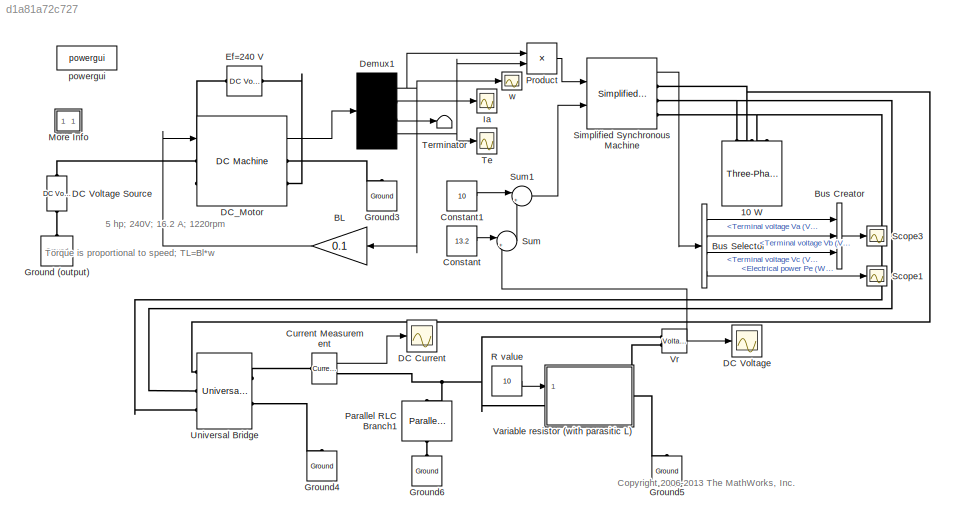
MODEL slx_d1a81a72c727
KIND model
CONFIG AbsTol = auto
CONFIG FixedStep = auto
CONFIG MaxStep = 0.001
CONFIG MinStep = auto
CONFIG RelTol = 1e-4
CONFIG SampleTimeConstraint = Unconstrained
CONFIG Solver = ode23tb
CONFIG SolverMode = Auto
CONFIG SolverName = ode23tb
CONFIG StartTime = 0.0
CONFIG StopTime = 3
BLOCK [Reference] 10 W  REF=powerlib/Elements/Three-Phase
Parallel RLC Load
  AttributesFormatString = \n
  Ports = [0, 0, 0, 0, 0, 3]
  SourceBlock = powerlib/Elements/Three-Phase\nParallel RLC Load
  SourceType = Three-Phase Parallel RLC Load
BLOCK [Gain] BL
  Gain = 0.1
BLOCK [BusCreator] Bus Creator
  DisplayOption = bar
  InheritFromInputs = on
  Inputs = 3
  Ports = [3, 1]
BLOCK [BusSelector] Bus Selector
  OutputSignals = Terminal voltage Va (V),Terminal voltage Vb (V),Terminal voltage Vc (V),Electrical power Pe (W)
  Ports = [1, 4]
BLOCK [Constant] Constant
  Value = 13.2
BLOCK [Constant] Constant1
  Value = 10
BLOCK [Reference] Current Measurement  REF=powerlib/Measurements/Current Measurement
  Ports = [0, 1, 0, 0, 0, 1, 1]
  SourceBlock = powerlib/Measurements/Current Measurement
  SourceType = Current Measurement
BLOCK [Scope] DC Current
  Ports = [1]
  ScopeSpecificationString = Simulink.scopes.TimeScopeBlockCfg('CurrentConfiguration', extmgr.ConfigurationSet(extmgr.Configuration('Core','General UI',true),extmgr.Configuration('Core','Source UI',true),extmgr.Configuration('Sources','WiredSimulink',true,'PointsPerSignal',130000,'DataLoggingDecimation','1','DataLoggingSaveFormat','StructureWithTime'),extmgr.Configuration('Visuals','Time Domain',true,'SerializedDisplays',{str...<+1989ch>
BLOCK [Scope] DC Voltage
  Ports = [1]
  ScopeSpecificationString = Simulink.scopes.TimeScopeBlockCfg('CurrentConfiguration', extmgr.ConfigurationSet(extmgr.Configuration('Core','General UI',true),extmgr.Configuration('Core','Source UI',true),extmgr.Configuration('Sources','WiredSimulink',true,'DataLoggingDecimation','1','PointsPerSignal',130000,'DataLoggingSaveFormat','StructureWithTime'),extmgr.Configuration('Visuals','Time Domain',true,'SerializedDisplays',{str...<+1993ch>
BLOCK [Reference] DC Voltage Source  REF=powerlib/Electrical
Sources/DC Voltage Source
  Ports = [0, 0, 0, 0, 0, 1, 1]
  SourceBlock = powerlib/Electrical\nSources/DC Voltage Source
  SourceType = DC Voltage Source
BLOCK [Reference] DC_Motor  REF=powerlib/Machines/DC Machine
  Ports = [1, 1, 0, 0, 0, 2, 2]
  SourceBlock = powerlib/Machines/DC Machine
  SourceType = DC machine
BLOCK [Demux] Demux1
  Ports = [1, 4]
BLOCK [Reference] Ef=240 V  REF=powerlib/Electrical
Sources/DC Voltage Source
  Ports = [0, 0, 0, 0, 0, 1, 1]
  SourceBlock = powerlib/Electrical\nSources/DC Voltage Source
  SourceType = DC Voltage Source
BLOCK [Reference] Ground (output)  REF=powerlib/Elements/Ground
  Ports = [0, 0, 0, 0, 0, 1]
  SourceBlock = powerlib/Elements/Ground
  SourceType = Ground
BLOCK [Reference] Ground3  REF=powerlib/Elements/Ground
  Ports = [0, 0, 0, 0, 0, 1]
  SourceBlock = powerlib/Elements/Ground
  SourceType = Ground
BLOCK [Reference] Ground4  REF=powerlib/Elements/Ground
  Ports = [0, 0, 0, 0, 0, 1]
  SourceBlock = powerlib/Elements/Ground
  SourceType = Ground
BLOCK [Reference] Ground5  REF=powerlib/Elements/Ground
  Ports = [0, 0, 0, 0, 0, 1]
  SourceBlock = powerlib/Elements/Ground
  SourceType = Ground
BLOCK [Reference] Ground6  REF=powerlib/Elements/Ground
  Ports = [0, 0, 0, 0, 0, 1]
  SourceBlock = powerlib/Elements/Ground
  SourceType = Ground
BLOCK [Scope] Ia
  Ports = [1]
  ScopeSpecificationString = Simulink.scopes.TimeScopeBlockCfg('CurrentConfiguration', extmgr.ConfigurationSet(extmgr.Configuration('Core','General UI',true),extmgr.Configuration('Core','Source UI',true),extmgr.Configuration('Sources','WiredSimulink',true,'PointsPerSignal',130000,'DataLoggingVariableName','Ia','DataLogging',true,'DataLoggingMaxPoints','500000','DataLoggingDecimation','1','DataLoggingSaveFormat','Array'),extmg...<+2116ch>
BLOCK [SubSystem] More Info
  OpenFcn = showdemo(bdroot(gcb))
  Ports = []
  RequestExecContextInheritance = off
  Variant = off
BLOCK [Reference] Parallel RLC Branch1  REF=powerlib/Elements/Parallel RLC Branch
  AttributesFormatString = \n
  Ports = [0, 0, 0, 0, 0, 1, 1]
  SourceBlock = powerlib/Elements/Parallel RLC Branch
  SourceType = Parallel RLC Branch
BLOCK [Product] Product
  Ports = [2, 1]
  RndMeth = Floor
BLOCK [Constant] R value
  Value = 10
BLOCK [Scope] Scope1
  Ports = [1]
  ScopeSpecificationString = Simulink.scopes.TimeScopeBlockCfg('CurrentConfiguration', extmgr.ConfigurationSet(extmgr.Configuration('Core','General UI',true),extmgr.Configuration('Core','Source UI',true),extmgr.Configuration('Sources','WiredSimulink',true,'DataLoggingDecimation','1','PointsPerSignal',130000,'DataLoggingSaveFormat','StructureWithTime'),extmgr.Configuration('Visuals','Time Domain',true,'SerializedDisplays',{str...<+1993ch>
BLOCK [Scope] Scope3
  Ports = [1]
  ScopeSpecificationString = Simulink.scopes.TimeScopeBlockCfg('CurrentConfiguration', extmgr.ConfigurationSet(extmgr.Configuration('Core','General UI',true),extmgr.Configuration('Core','Source UI',true),extmgr.Configuration('Sources','WiredSimulink',true,'DataLoggingDecimation','1','PointsPerSignal',400000,'DataLoggingSaveFormat','StructureWithTime'),extmgr.Configuration('Visuals','Time Domain',true,'SerializedDisplays',{str...<+1993ch>
BLOCK [Reference] Simplified Synchronous Machine   REF=powerlib/Machines/Simplified Synchronous
Machine SI Units
  Ports = [2, 1, 0, 0, 0, 0, 3]
  SourceBlock = powerlib/Machines/Simplified Synchronous\nMachine SI Units
  SourceType = Simplified Synchronous Machine
BLOCK [Sum] Sum
  IconShape = round
  Inputs = |+-
  Ports = [2, 1]
BLOCK [Sum] Sum1
  IconShape = round
  Inputs = |++
  Ports = [2, 1]
BLOCK [Scope] Te
  Ports = [1]
  ScopeSpecificationString = Simulink.scopes.TimeScopeBlockCfg('CurrentConfiguration', extmgr.ConfigurationSet(extmgr.Configuration('Core','General UI',true),extmgr.Configuration('Core','Source UI',true),extmgr.Configuration('Sources','WiredSimulink',true,'DataLogging',true,'DataLoggingDecimation','1','DataLoggingVariableName','Tm','DataLoggingMaxPoints','500000','PointsPerSignal',130000,'DataLoggingSaveFormat','Array'),extmg...<+2106ch>
BLOCK [Terminator] Terminator
BLOCK [Reference] Universal Bridge  REF=powerlib/Power
Electronics/Universal Bridge
  Ports = [0, 0, 0, 0, 0, 3, 2]
  SourceBlock = powerlib/Power\nElectronics/Universal Bridge
  SourceType = Universal Bridge
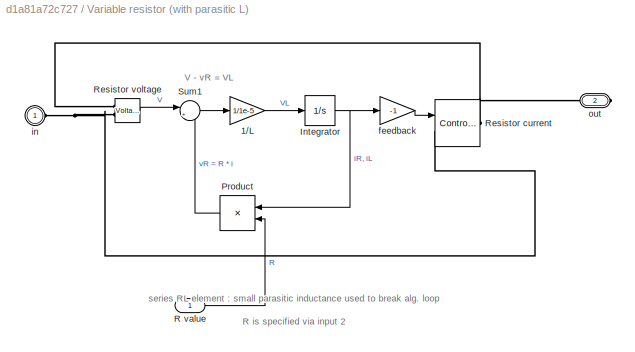
BLOCK [SubSystem] Variable resistor (with parasitic L) 
  Ports = [1, 0, 0, 0, 0, 1, 1]
  RequestExecContextInheritance = off
  Variant = off
BLOCK [Gain] Variable resistor (with parasitic L) /1//L
  Gain = 1/1e-5
BLOCK [Integrator] Variable resistor (with parasitic L) /Integrator
  Ports = [1, 1]
  ZeroCross = off
BLOCK [Product] Variable resistor (with parasitic L) /Product
  Ports = [2, 1]
  RndMeth = Floor
BLOCK [Inport] Variable resistor (with parasitic L) /R value
  IconDisplay = Port number
BLOCK [Reference] Variable resistor (with parasitic L) /Resistor current  REF=powerlib/Electrical
Sources/Controlled Current Source
  Ports = [1, 0, 0, 0, 0, 1, 1]
  SourceBlock = powerlib/Electrical\nSources/Controlled Current Source
  SourceType = Controlled Current Source
BLOCK [Reference] Variable resistor (with parasitic L) /Resistor voltage  REF=powerlib/Measurements/Voltage Measurement
  Ports = [0, 1, 0, 0, 0, 2]
  SourceBlock = powerlib/Measurements/Voltage Measurement
  SourceType = Voltage Measurement
BLOCK [Sum] Variable resistor (with parasitic L) /Sum1
  IconShape = round
  Inputs = |+-
  Ports = [2, 1]
BLOCK [Gain] Variable resistor (with parasitic L) /feedback
  Gain = -1
BLOCK [PMIOPort] Variable resistor (with parasitic L) /in
  Port = 1
  Side = Left
BLOCK [PMIOPort] Variable resistor (with parasitic L) /out
  Port = 2
  Side = Right
BLOCK [Reference] Vr  REF=powerlib/Measurements/Voltage Measurement
  Ports = [0, 1, 0, 0, 0, 2]
  SourceBlock = powerlib/Measurements/Voltage Measurement
  SourceType = Voltage Measurement
BLOCK [Reference] powergui  REF=powerlib/powergui
  Ports = []
  SourceBlock = powerlib/powergui
  SourceType = PSB option menu block
BLOCK [Scope] w
  Ports = [1]
  ScopeSpecificationString = Simulink.scopes.TimeScopeBlockCfg('CurrentConfiguration', extmgr.ConfigurationSet(extmgr.Configuration('Core','General UI',true),extmgr.Configuration('Core','Source UI',true),extmgr.Configuration('Sources','WiredSimulink',true,'DataLoggingDecimation','1','DataLoggingVariableName','w','PointsPerSignal',130000,'DataLoggingMaxPoints','500000','DataLoggingSaveFormat','Array'),extmgr.Configuration('Vis...<+2080ch>
ANNOTATION (root): 5 hp; 240V; 16.2 A; 1220rpm
ANNOTATION (root): <copyright redacted>
ANNOTATION (root): Torque is proportional to speed; TL=Bl*w
ANNOTATION Variable resistor (with parasitic L) : V - vR = VL
ANNOTATION Variable resistor (with parasitic L) : series RL element : small parasitic inductance used to break alg. loop R is specified via input 2
LINE BL:1 -> DC_Motor:1
LINE Bus Creator:1 -> Scope3:1
LINE Bus Selector:1 -> Bus Creator:1
LINE Bus Selector:2 -> Bus Creator:2
LINE Bus Selector:3 -> Bus Creator:3
LINE Bus Selector:4 -> Scope1:1
LINE Constant1:1 -> Sum1:1
LINE Constant:1 -> Sum:1
LINE Current Measurement:1 -> DC Current:1
LINE DC_Motor:1 -> Demux1:1
NET Demux1:1 -> BL:1, Product:1, w:1
LINE Demux1:2 -> Ia:1
LINE Demux1:3 -> Terminator:1
NET Demux1:4 -> Product:2, Te:1
LINE Product:1 -> Simplified Synchronous Machine :1
LINE R value:1 -> Variable resistor (with parasitic L) :1
LINE Simplified Synchronous Machine :1 -> Bus Selector:1
LINE Sum1:1 -> Simplified Synchronous Machine :2
LINE Sum:1 -> Sum1:2
LINE Variable resistor (with parasitic L) /1//L:1 -> Variable resistor (with parasitic L) /Integrator:1
NET Variable resistor (with parasitic L) /Integrator:1 -> Variable resistor (with parasitic L) /Product:1, Variable resistor (with parasitic L) /feedback:1
LINE Variable resistor (with parasitic L) /Product:1 -> Variable resistor (with parasitic L) /Sum1:2
LINE Variable resistor (with parasitic L) /R value:1 -> Variable resistor (with parasitic L) /Product:2
LINE Variable resistor (with parasitic L) /Resistor voltage:1 -> Variable resistor (with parasitic L) /Sum1:1
LINE Variable resistor (with parasitic L) /Sum1:1 -> Variable resistor (with parasitic L) /1//L:1
LINE Variable resistor (with parasitic L) /feedback:1 -> Variable resistor (with parasitic L) /Resistor current:1
NET Vr:1 -> DC Voltage:1, Sum:2
PNET net1: 10 W:LConn1 -- Simplified Synchronous Machine :RConn1 -- Universal Bridge:LConn1
PNET net2: 10 W:LConn2 -- Simplified Synchronous Machine :RConn2 -- Universal Bridge:LConn2
PNET net3: 10 W:LConn3 -- Simplified Synchronous Machine :RConn3 -- Universal Bridge:LConn3
PLINE Current Measurement:LConn1 -- Universal Bridge:RConn1
PNET net4: Current Measurement:RConn1 -- Parallel RLC Branch1:LConn1 -- Variable resistor (with parasitic L) :LConn1 -- Vr:LConn1
PLINE DC Voltage Source:LConn1 -- Ground (output):LConn1
PLINE DC Voltage Source:RConn1 -- DC_Motor:LConn1
PLINE DC_Motor:LConn2 -- Ef=240 V:RConn1
PLINE DC_Motor:RConn1 -- Ground3:LConn1
PLINE DC_Motor:RConn2 -- Ef=240 V:LConn1
PLINE Ground4:LConn1 -- Universal Bridge:RConn2
PNET net5: Ground5:LConn1 -- Variable resistor (with parasitic L) :RConn1 -- Vr:LConn2
PLINE Ground6:LConn1 -- Parallel RLC Branch1:RConn1
PNET net6: Variable resistor (with parasitic L) /Resistor current:LConn1 -- Variable resistor (with parasitic L) /Resistor voltage:LConn2 -- Variable resistor (with parasitic L) /in:RConn1
PNET net7: Variable resistor (with parasitic L) /Resistor current:RConn1 -- Variable resistor (with parasitic L) /Resistor voltage:LConn1 -- Variable resistor (with parasitic L) /out:RConn1
note: NET lines group one-source signal fan-out (src -> all destinations, sorted); 1:1 wires keep LINE; PNET lines group multi-terminal physical nets as a canonical sorted terminal list (undirected conserving connections); 2-terminal nets keep the pairwise PLINE form
